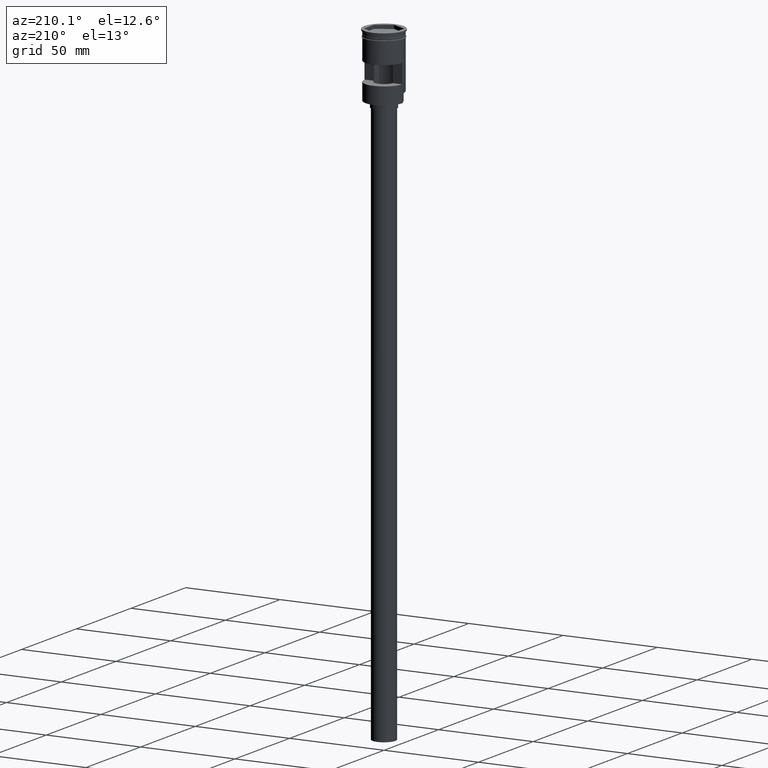
[diagram: clean part render]
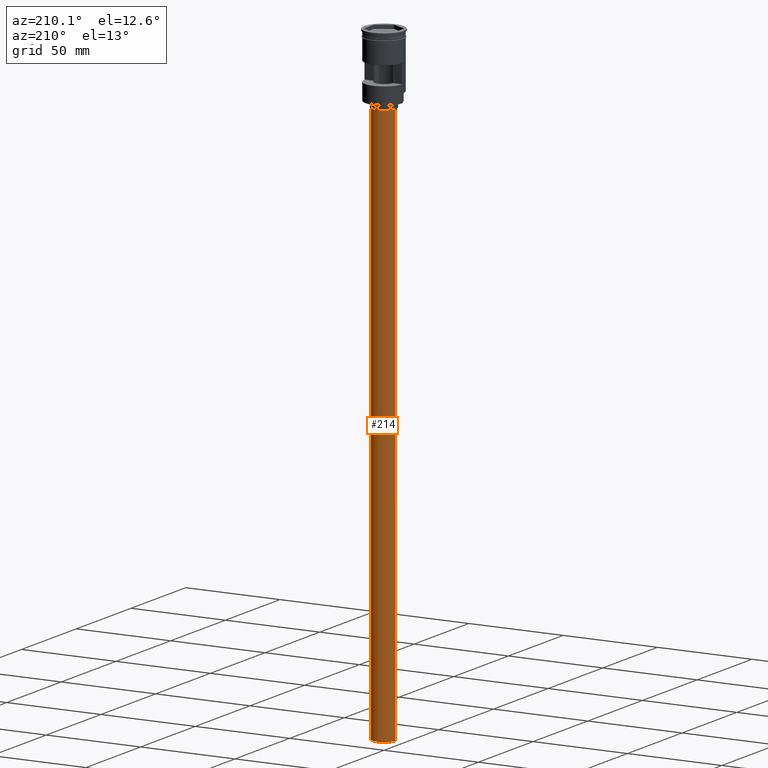
[diagram: same view with one face highlighted and labeled with its STEP entity id]
A machine part, auxiliary view. The second image highlights one B-rep face of the part: STEP entity #214.
In plain terms, the highlighted cylindrical surface (edge-blend (fillet) strip) has radius 6 mm, axis along (-0, -0, 1).
Its self-contained STEP definition (entity closure, byte-faithful):
#110 = ORIENTED_EDGE ( 'NONE', *, *, #280, .T. ) ;
#157 = CARTESIAN_POINT ( 'NONE',  ( 6.000000000000000888, 0.000000000000000000, -333.9999999999999432 ) ) ;
#210 = VERTEX_POINT ( 'NONE', #620 ) ;
#214 = ADVANCED_FACE ( 'NONE', ( #969 ), #246, .T. ) ;
#246 = CYLINDRICAL_SURFACE ( 'NONE', #941, 6.000000000000000888 ) ;
#275 = LINE ( 'NONE', #395, #1250 ) ;
#280 = EDGE_CURVE ( 'NONE', #1433, #891, #1196, .T. ) ;
#339 = ORIENTED_EDGE ( 'NONE', *, *, #1562, .F. ) ;
#395 = CARTESIAN_POINT ( 'NONE',  ( -6.000000000000000888, 7.347880794884120722E-16, -333.9999999999999432 ) ) ;
#407 = CARTESIAN_POINT ( 'NONE',  ( -6.000000000000000888, 7.347880794884120722E-16, -37.00000000000000000 ) ) ;
#471 = DIRECTION ( 'NONE',  ( -0.000000000000000000, -0.000000000000000000, 1.000000000000000000 ) ) ;
#531 = DIRECTION ( 'NONE',  ( -0.000000000000000000, -0.000000000000000000, 1.000000000000000000 ) ) ;
#620 = CARTESIAN_POINT ( 'NONE',  ( -6.000000000000000888, 7.347880794884120722E-16, -333.9999999999999432 ) ) ;
#659 = VECTOR ( 'NONE', #471, 1000.000000000000000 ) ;
#688 = EDGE_LOOP ( 'NONE', ( #730, #1501, #110, #339 ) ) ;
#730 = ORIENTED_EDGE ( 'NONE', *, *, #1033, .F. ) ;
#753 = DIRECTION ( 'NONE',  ( -1.000000000000000000, 0.000000000000000000, 0.000000000000000000 ) ) ;
#764 = CARTESIAN_POINT ( 'NONE',  ( 6.000000000000000888, 0.000000000000000000, -333.9999999999999432 ) ) ;
#771 = DIRECTION ( 'NONE',  ( 0.000000000000000000, 0.000000000000000000, -1.000000000000000000 ) ) ;
#830 = DIRECTION ( 'NONE',  ( -1.000000000000000000, 0.000000000000000000, 0.000000000000000000 ) ) ;
#885 = LINE ( 'NONE', #764, #659 ) ;
#891 = VERTEX_POINT ( 'NONE', #904 ) ;
#904 = CARTESIAN_POINT ( 'NONE',  ( 6.000000000000000888, 0.000000000000000000, -37.00000000000000000 ) ) ;
#941 = AXIS2_PLACEMENT_3D ( 'NONE', #978, #1599, #1605 ) ;
#969 = FACE_OUTER_BOUND ( 'NONE', #688, .T. ) ;
#978 = CARTESIAN_POINT ( 'NONE',  ( 0.000000000000000000, 0.000000000000000000, -333.9999999999999432 ) ) ;
#987 = CARTESIAN_POINT ( 'NONE',  ( 0.000000000000000000, 0.000000000000000000, -333.9999999999999432 ) ) ;
#1033 = EDGE_CURVE ( 'NONE', #210, #1398, #1508, .T. ) ;
#1196 = CIRCLE ( 'NONE', #1219, 6.000000000000000888 ) ;
#1219 = AXIS2_PLACEMENT_3D ( 'NONE', #1265, #771, #753 ) ;
#1250 = VECTOR ( 'NONE', #531, 1000.000000000000000 ) ;
#1265 = CARTESIAN_POINT ( 'NONE',  ( 0.000000000000000000, 0.000000000000000000, -37.00000000000000000 ) ) ;
#1398 = VERTEX_POINT ( 'NONE', #157 ) ;
#1430 = EDGE_CURVE ( 'NONE', #210, #1433, #275, .T. ) ;
#1433 = VERTEX_POINT ( 'NONE', #407 ) ;
#1444 = DIRECTION ( 'NONE',  ( 0.000000000000000000, 0.000000000000000000, -1.000000000000000000 ) ) ;
#1460 = AXIS2_PLACEMENT_3D ( 'NONE', #987, #1444, #830 ) ;
#1501 = ORIENTED_EDGE ( 'NONE', *, *, #1430, .T. ) ;
#1508 = CIRCLE ( 'NONE', #1460, 6.000000000000000888 ) ;
#1562 = EDGE_CURVE ( 'NONE', #1398, #891, #885, .T. ) ;
#1599 = DIRECTION ( 'NONE',  ( -0.000000000000000000, -0.000000000000000000, 1.000000000000000000 ) ) ;
#1605 = DIRECTION ( 'NONE',  ( 1.000000000000000000, 0.000000000000000000, 0.000000000000000000 ) ) ;